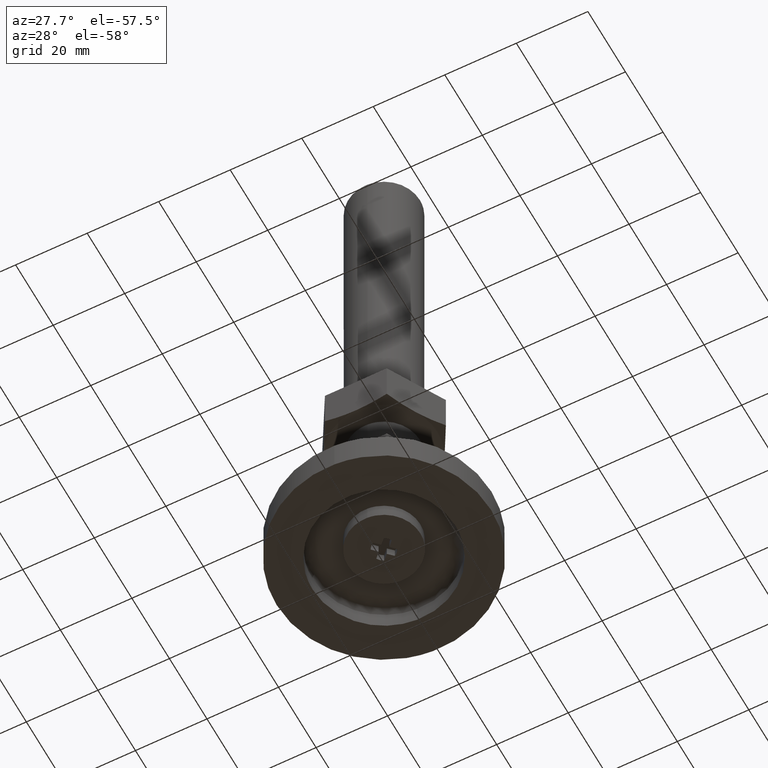
[diagram: clean part render]
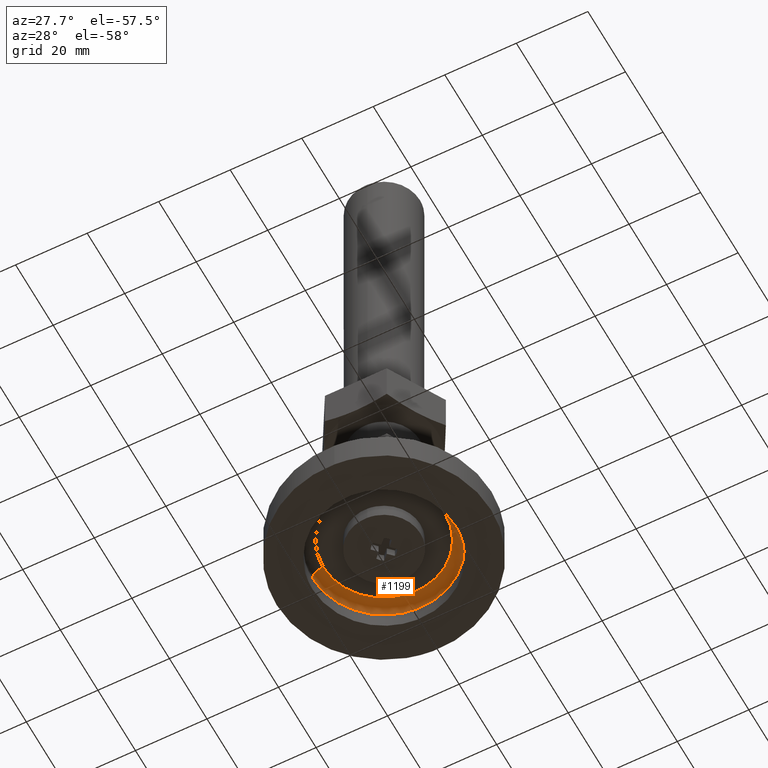
[diagram: same view with one face highlighted and labeled with its STEP entity id]
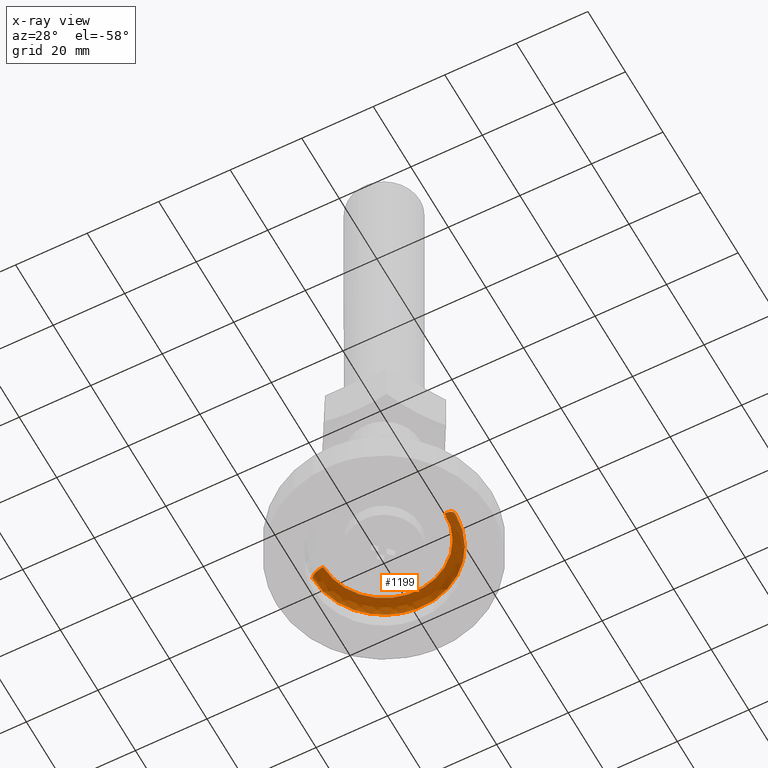
[diagram: x-ray of the same camera — body ghosted, the highlighted face saturated]
A machine part, auxiliary view. The second image highlights one B-rep face of the part: STEP entity #1199.
The next image is the same camera in x-ray: the body ghosted, the highlighted face saturated — about 0% of this face is hidden behind the body in this view.
In plain terms, the highlighted face is a freeform B-spline surface patch.
Its self-contained STEP definition (entity closure, byte-faithful):
#1036=CARTESIAN_POINT('',(-17.000000001645851,-1.770490E-015,8.0));
#1037=VERTEX_POINT('',#1036);
#1038=CARTESIAN_POINT('',(17.000000001645851,8.852452E-016,8.0));
#1039=VERTEX_POINT('',#1038);
#1040=CARTESIAN_POINT('',(-17.000000001645851,-1.770490E-015,8.0));
#1041=CARTESIAN_POINT('',(-16.999990721168789,0.243349966969011,7.999999999999981));
#1042=CARTESIAN_POINT('',(-16.994109564028651,0.521477083838013,8.000000000000039));
#1043=CARTESIAN_POINT('',(-16.979274577945532,0.834017691041162,7.999999999999994));
#1044=CARTESIAN_POINT('',(-16.972532891964491,0.972936160853366,8.0));
#1045=CARTESIAN_POINT('',(-16.912706209140300,1.944712115945395,7.999999999999989));
#1046=CARTESIAN_POINT('',(-16.597144073982339,4.118970381879124,8.000000000000021));
#1047=CARTESIAN_POINT('',(-15.629877422680689,6.930771318749280,7.999999999999963));
#1048=CARTESIAN_POINT('',(-14.083066917181339,9.660895468299280,8.000000000000060));
#1049=CARTESIAN_POINT('',(-12.104535979585609,12.102529968671860,7.999999999999929));
#1050=CARTESIAN_POINT('',(-9.670690134701111,14.099806671513139,8.000000000000021));
#1051=CARTESIAN_POINT('',(-6.982737232752072,15.579109343409520,8.000000000000002));
#1052=CARTESIAN_POINT('',(-4.485482924001275,16.472613845200911,8.000000000000004));
#1053=CARTESIAN_POINT('',(-1.469248669001769,17.034361533169250,7.999999999999971));
#1054=CARTESIAN_POINT('',(1.609152907102624,17.034340398576880,7.999999999999981));
#1055=CARTESIAN_POINT('',(4.758141608302925,16.407888696862610,8.000000000000009));
#1056=CARTESIAN_POINT('',(7.167574516487509,15.478391298030401,7.999999999999998));
#1057=CARTESIAN_POINT('',(9.356703328831419,14.255968663148670,7.999999999999996));
#1058=CARTESIAN_POINT('',(11.253160282972109,12.831363755491161,8.0));
#1059=CARTESIAN_POINT('',(12.908837478059681,11.134463713064660,8.0));
#1060=CARTESIAN_POINT('',(14.456687085399150,9.074148720541029,8.0));
#1061=CARTESIAN_POINT('',(15.741328279543829,6.670764070587741,8.0));
#1062=CARTESIAN_POINT('',(16.753072466623141,3.476904277523517,8.0));
#1063=CARTESIAN_POINT('',(17.000237059235580,1.251726017164678,8.0));
#1064=CARTESIAN_POINT('',(17.000000001645851,8.852452E-016,8.0));
#1065=B_SPLINE_CURVE_WITH_KNOTS('',3,(#1040,#1041,#1042,#1043,#1044,#1045,#1046,#1047,#1048,#1049,#1050,#1051,#1052,#1053,#1054,#1055,#1056,#1057,#1058,#1059,#1060,#1061,#1062,#1063,#1064),.UNSPECIFIED.,.F.,.U.,(4,1,1,1,1,1,1,1,1,1,1,1,1,1,1,1,1,1,1,1,1,1,4),(-0.000007401901115,0.730053412459824,0.834366550589849,0.938679688719951,1.147303918838581,3.755179804262070,7.510390042064365,10.013858842347870,13.143228713576480,16.898453451042919,19.401947303287120,22.322669816368659,24.826117665882020,28.581259047652200,31.501944038060341,34.422686242548068,36.300315308177836,39.012440786841793,41.515924971051959,43.393550115536193,46.731539208211949,49.652252272176533,53.407406403112809),.UNSPECIFIED.);
#1066=EDGE_CURVE('',#1037,#1039,#1065,.T.);
#1107=CARTESIAN_POINT('',(-16.791948273606017,-0.469448093220459,7.992777051359569));
#1108=CARTESIAN_POINT('',(-16.791948273606025,-0.236091020692344,7.992777051359569));
#1109=CARTESIAN_POINT('',(-16.791948273606021,16.791948273606021,7.992777051359571));
#1110=CARTESIAN_POINT('',(-4.112705E-015,16.791948273606025,7.992777051359570));
#1111=CARTESIAN_POINT('',(16.791948273606021,16.791948273606021,7.992777051359571));
#1112=CARTESIAN_POINT('',(16.791948273606025,-0.236091020692338,7.992777051359570));
#1113=CARTESIAN_POINT('',(16.791948273606032,-0.469448093220455,7.992777051359570));
#1114=CARTESIAN_POINT('',(-20.233217815759915,-0.565654763137437,8.232007056450280));
#1115=CARTESIAN_POINT('',(-20.233217815759904,-0.284474497430515,8.232007056450279));
#1116=CARTESIAN_POINT('',(-20.233217815759911,20.233217815759897,8.232007056450279));
#1117=CARTESIAN_POINT('',(-4.955545E-015,20.233217815759915,8.232007056450280));
#1118=CARTESIAN_POINT('',(20.233217815759897,20.233217815759911,8.232007056450279));
#1119=CARTESIAN_POINT('',(20.233217815759904,-0.284474497430507,8.232007056450279));
#1120=CARTESIAN_POINT('',(20.233217815759911,-0.565654763137432,8.232007056450279));
#1121=CARTESIAN_POINT('',(-19.992698916677778,-0.558930639365863,4.790827358109024));
#1122=CARTESIAN_POINT('',(-19.992698916677778,-0.281092855738028,4.790827358109024));
#1123=CARTESIAN_POINT('',(-19.992698916677785,19.992698916677767,4.790827358109024));
#1124=CARTESIAN_POINT('',(-4.896637E-015,19.992698916677771,4.790827358109024));
#1125=CARTESIAN_POINT('',(19.992698916677767,19.992698916677785,4.790827358109024));
#1126=CARTESIAN_POINT('',(19.992698916677778,-0.281092855738021,4.790827358109024));
#1127=CARTESIAN_POINT('',(19.992698916677774,-0.558930639365858,4.790827358109024));
#1135=(BOUNDED_SURFACE()B_SPLINE_SURFACE(2,2,((#1107,#1114,#1121),(#1108,#1115,#1122),(#1109,#1116,#1123),(#1110,#1117,#1124),(#1111,#1118,#1125),(#1112,#1119,#1126),(#1113,#1120,#1127)),.UNSPECIFIED.,.F.,.F.,.U.)B_SPLINE_SURFACE_WITH_KNOTS((3,1,2,1,3),(3,3),(0.0,0.662499763178386,33.787487922097661,66.912476081016933,67.574975844195322),(0.0,5.468181530991065),.UNSPECIFIED.)GEOMETRIC_REPRESENTATION_ITEM()RATIONAL_B_SPLINE_SURFACE(((0.926697838400259,0.606435486919036,0.921564728292852),(0.921332230155912,0.602924207283492,0.916228840909793),(0.647686209694202,0.423848945870745,0.644098584373797),(0.915966621911565,0.599412927647948,0.910892953526734),(0.647686209694202,0.423848945870745,0.644098584373797),(0.921332230155912,0.602924207283492,0.916228840909793),(0.926697838400259,0.606435486919036,0.921564728292852)))REPRESENTATION_ITEM('')SURFACE());
#1136=CARTESIAN_POINT('',(-20.0,-1.770216E-015,5.000000000871270));
#1137=VERTEX_POINT('',#1136);
#1138=CARTESIAN_POINT('',(-17.000000001645848,-3.540981E-015,8.0));
#1139=CARTESIAN_POINT('',(-19.999999999128725,-3.497002E-015,7.999999998354147));
#1140=CARTESIAN_POINT('',(-19.999999999999986,-3.540432E-015,5.000000000871271));
#1148=(BOUNDED_CURVE()B_SPLINE_CURVE(2,(#1138,#1139,#1140),.UNSPECIFIED.,.F.,.U.)B_SPLINE_CURVE_WITH_KNOTS((3,3),(-1.736413120504371,-0.276558718314248),.UNSPECIFIED.)CURVE()GEOMETRIC_REPRESENTATION_ITEM()RATIONAL_B_SPLINE_CURVE((0.888510408858844,0.626638727391237,0.883897567033278))REPRESENTATION_ITEM(''));
#1149=EDGE_CURVE('',#1037,#1137,#1148,.T.);
#1150=ORIENTED_EDGE('',*,*,#1149,.T.);
#1151=CARTESIAN_POINT('',(-1.220954897837458,19.962696940473581,5.000000000871270));
#1152=VERTEX_POINT('',#1151);
#1153=CARTESIAN_POINT('',(-20.0,-1.770216E-015,5.000000000871270));
#1154=CARTESIAN_POINT('',(-19.999999999999805,18.814136344552988,5.000000000871271));
#1155=CARTESIAN_POINT('',(-1.220954897837459,19.962696940473577,5.000000000871270));
#1163=(BOUNDED_CURVE()B_SPLINE_CURVE(2,(#1153,#1154,#1155),.UNSPECIFIED.,.F.,.U.)B_SPLINE_CURVE_WITH_KNOTS((3,3),(0.0,0.239333099611300),.UNSPECIFIED.)CURVE()GEOMETRIC_REPRESENTATION_ITEM()RATIONAL_B_SPLINE_CURVE((1.0,0.719603832344983,0.976072336082005))REPRESENTATION_ITEM(''));
#1164=EDGE_CURVE('',#1137,#1152,#1163,.T.);
#1165=ORIENTED_EDGE('',*,*,#1164,.T.);
#1166=CARTESIAN_POINT('',(20.0,8.851079E-016,5.000000000871270));
#1167=VERTEX_POINT('',#1166);
#1168=CARTESIAN_POINT('',(-1.220954897837459,19.962696940473577,5.000000000871270));
#1169=CARTESIAN_POINT('',(-0.611047297261024,19.999999999993761,5.000000000871270));
#1170=CARTESIAN_POINT('',(3.775416E-013,19.999999999993861,5.000000000871270));
#1171=CARTESIAN_POINT('',(20.000000000000181,19.999999999997026,5.000000000871270));
#1172=CARTESIAN_POINT('',(20.0,8.851079E-016,5.000000000871270));
#1180=(BOUNDED_CURVE()B_SPLINE_CURVE(2,(#1168,#1169,#1170,#1171,#1172),.UNSPECIFIED.,.F.,.U.)B_SPLINE_CURVE_WITH_KNOTS((3,2,3),(0.239333099611300,0.250000000000000,0.500000000000000),.UNSPECIFIED.)CURVE()GEOMETRIC_REPRESENTATION_ITEM()RATIONAL_B_SPLINE_CURVE((0.976072336082005,0.987502948841565,1.0,0.707106781186548,1.0))REPRESENTATION_ITEM(''));
#1181=EDGE_CURVE('',#1152,#1167,#1180,.T.);
#1182=ORIENTED_EDGE('',*,*,#1181,.T.);
#1183=CARTESIAN_POINT('',(17.000000001645848,1.770490E-015,8.0));
#1184=CARTESIAN_POINT('',(19.999999999128725,1.748501E-015,7.999999998354147));
#1185=CARTESIAN_POINT('',(19.999999999999986,1.770216E-015,5.000000000871271));
#1193=(BOUNDED_CURVE()B_SPLINE_CURVE(2,(#1183,#1184,#1185),.UNSPECIFIED.,.F.,.U.)B_SPLINE_CURVE_WITH_KNOTS((3,3),(-1.736413120504371,-0.276558718314248),.UNSPECIFIED.)CURVE()GEOMETRIC_REPRESENTATION_ITEM()RATIONAL_B_SPLINE_CURVE((0.888510408858844,0.626638727391237,0.883897567033278))REPRESENTATION_ITEM(''));
#1194=EDGE_CURVE('',#1039,#1167,#1193,.T.);
#1195=ORIENTED_EDGE('',*,*,#1194,.F.);
#1196=ORIENTED_EDGE('',*,*,#1066,.F.);
#1197=EDGE_LOOP('',(#1150,#1165,#1182,#1195,#1196));
#1198=FACE_OUTER_BOUND('',#1197,.T.);
#1199=ADVANCED_FACE('',(#1198),#1135,.F.);